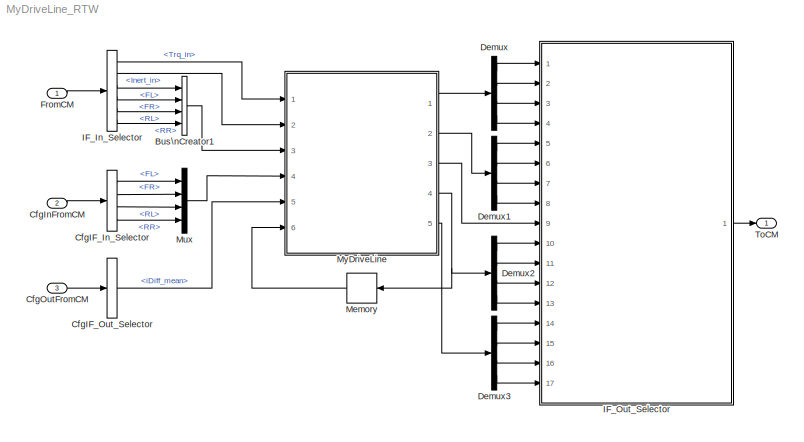
MODEL MyDriveLine_RTW
KIND model
CONFIG InitFcn = vehicle = 'Car'; if ~length(which('cmcmd')), cmenv; end\nMyDriveLine_RTW_bus
CONFIG PreLoadFcn = vehicle = 'Car'; if ~length(which('cmcmd')), cmenv; end\nMyDriveLine_RTW_bus
BLOCK [BusCreator] Bus\nCreator1
  DisplayOption = bar
  InheritFromInputs = on
  Inputs = 4
  Ports = [4, 1]
  SID = 85
BLOCK [BusSelector] CfgIF_In_Selector
  OutputSignals = Wheel_Iyy.FL,Wheel_Iyy.FR,Wheel_Iyy.RL,Wheel_Iyy.RR
  Ports = [1, 4]
  SID = 9
BLOCK [BusSelector] CfgIF_Out_Selector
  OutputSignals = iDiff_mean
  Ports = [1, 1]
  SID = 12
BLOCK [Inport] CfgInFromCM
  OutDataTypeStr = Bus: cmPTDriveLineCfgIn
  Port = 2
  SID = 8
BLOCK [Inport] CfgOutFromCM
  OutDataTypeStr = Bus: cmPTDriveLineCfgOut
  Port = 3
  SID = 11
BLOCK [Demux] Demux
  Ports = [1, 4]
  SID = 86
BLOCK [Demux] Demux1
  Ports = [1, 4]
  SID = 87
BLOCK [Demux] Demux2
  Ports = [1, 4]
  SID = 88
BLOCK [Demux] Demux3
  Ports = [1, 4]
  SID = 89
BLOCK [Inport] FromCM
  OutDataTypeStr = Bus: cmPTDriveLineIn
  SID = 1
BLOCK [BusSelector] IF_In_Selector
  OutputSignals = DriveIn.d0.Trq_in,DriveIn.d0.Inert_in,WheelIn.FL,WheelIn.FR,WheelIn.RL,WheelIn.RR
  Ports = [1, 6]
  SID = 2
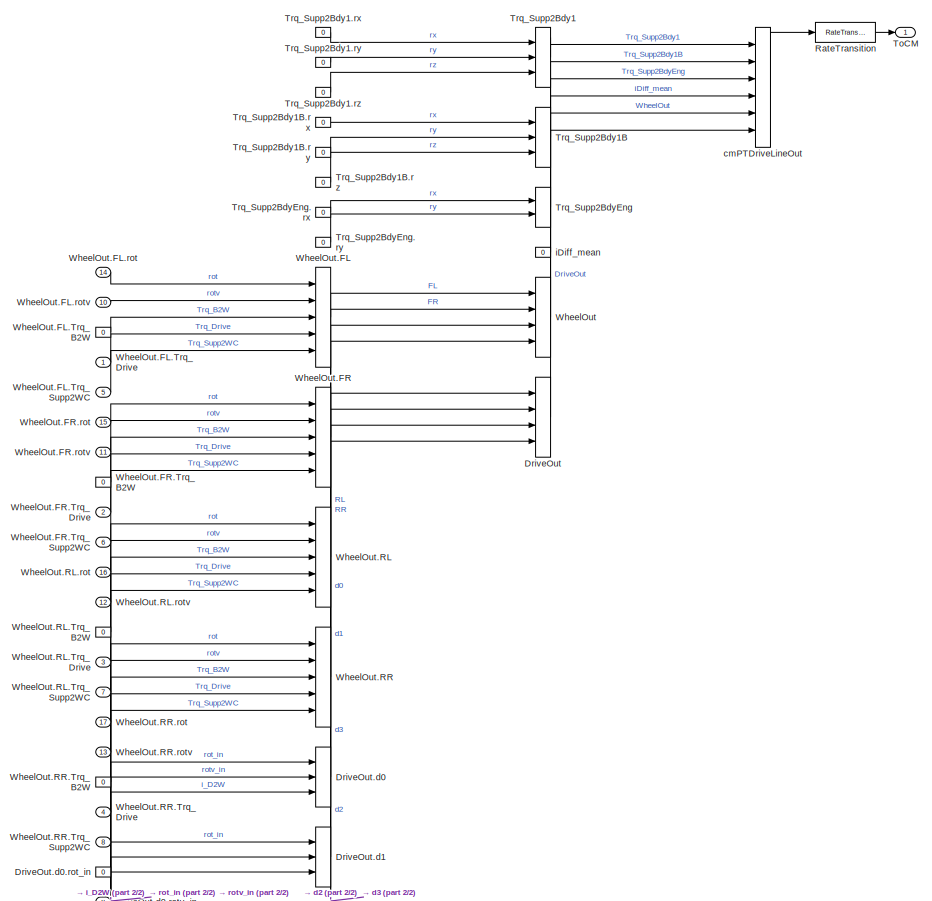
[diagram: IF_Out_Selector - part 1/2, full width, top band]
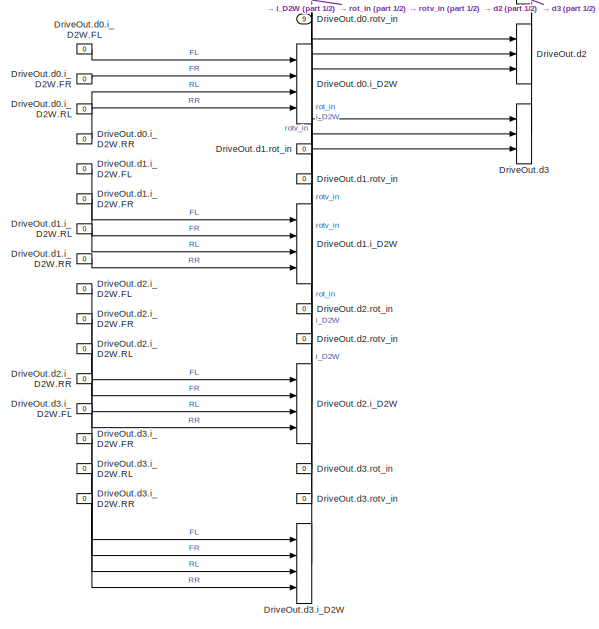
[diagram: IF_Out_Selector - part 2/2, bottom left region]
BLOCK [SubSystem] IF_Out_Selector
  OpenFcn = cmSignalSelect('SignalSelection_CB',gcb)
  Ports = [17, 1]
  RequestExecContextInheritance = off
  SID = 5
  UserData = DataTag0
  UserDataPersistent = on
BLOCK [BusCreator] IF_Out_Selector/DriveOut
  InheritFromInputs = on
  Inputs = 4
  Ports = [4, 1]
  SID = 52
BLOCK [BusCreator] IF_Out_Selector/DriveOut.d0
  InheritFromInputs = on
  Inputs = 3
  Ports = [3, 1]
  SID = 53
BLOCK [BusCreator] IF_Out_Selector/DriveOut.d0.i_D2W
  InheritFromInputs = on
  Inputs = 4
  Ports = [4, 1]
  SID = 56
BLOCK [Constant] IF_Out_Selector/DriveOut.d0.i_D2W.FL
  SID = 57
  Value = 0
BLOCK [Constant] IF_Out_Selector/DriveOut.d0.i_D2W.FR
  SID = 58
  Value = 0
BLOCK [Constant] IF_Out_Selector/DriveOut.d0.i_D2W.RL
  SID = 59
  Value = 0
BLOCK [Constant] IF_Out_Selector/DriveOut.d0.i_D2W.RR
  SID = 60
  Value = 0
BLOCK [Constant] IF_Out_Selector/DriveOut.d0.rot_in
  SID = 54
  Value = 0
BLOCK [Inport] IF_Out_Selector/DriveOut.d0.rotv_in
  Port = 9
  SID = 172
BLOCK [BusCreator] IF_Out_Selector/DriveOut.d1
  InheritFromInputs = on
  Inputs = 3
  Ports = [3, 1]
  SID = 61
BLOCK [BusCreator] IF_Out_Selector/DriveOut.d1.i_D2W
  InheritFromInputs = on
  Inputs = 4
  Ports = [4, 1]
  SID = 64
BLOCK [Constant] IF_Out_Selector/DriveOut.d1.i_D2W.FL
  SID = 65
  Value = 0
BLOCK [Constant] IF_Out_Selector/DriveOut.d1.i_D2W.FR
  SID = 66
  Value = 0
BLOCK [Constant] IF_Out_Selector/DriveOut.d1.i_D2W.RL
  SID = 67
  Value = 0
BLOCK [Constant] IF_Out_Selector/DriveOut.d1.i_D2W.RR
  SID = 68
  Value = 0
BLOCK [Constant] IF_Out_Selector/DriveOut.d1.rot_in
  SID = 62
  Value = 0
BLOCK [Constant] IF_Out_Selector/DriveOut.d1.rotv_in
  SID = 63
  Value = 0
BLOCK [BusCreator] IF_Out_Selector/DriveOut.d2
  InheritFromInputs = on
  Inputs = 3
  Ports = [3, 1]
  SID = 69
BLOCK [BusCreator] IF_Out_Selector/DriveOut.d2.i_D2W
  InheritFromInputs = on
  Inputs = 4
  Ports = [4, 1]
  SID = 72
BLOCK [Constant] IF_Out_Selector/DriveOut.d2.i_D2W.FL
  SID = 73
  Value = 0
BLOCK [Constant] IF_Out_Selector/DriveOut.d2.i_D2W.FR
  SID = 74
  Value = 0
BLOCK [Constant] IF_Out_Selector/DriveOut.d2.i_D2W.RL
  SID = 75
  Value = 0
BLOCK [Constant] IF_Out_Selector/DriveOut.d2.i_D2W.RR
  SID = 76
  Value = 0
BLOCK [Constant] IF_Out_Selector/DriveOut.d2.rot_in
  SID = 70
  Value = 0
BLOCK [Constant] IF_Out_Selector/DriveOut.d2.rotv_in
  SID = 71
  Value = 0
BLOCK [BusCreator] IF_Out_Selector/DriveOut.d3
  InheritFromInputs = on
  Inputs = 3
  Ports = [3, 1]
  SID = 77
BLOCK [BusCreator] IF_Out_Selector/DriveOut.d3.i_D2W
  InheritFromInputs = on
  Inputs = 4
  Ports = [4, 1]
  SID = 80
BLOCK [Constant] IF_Out_Selector/DriveOut.d3.i_D2W.FL
  SID = 81
  Value = 0
BLOCK [Constant] IF_Out_Selector/DriveOut.d3.i_D2W.FR
  SID = 82
  Value = 0
BLOCK [Constant] IF_Out_Selector/DriveOut.d3.i_D2W.RL
  SID = 83
  Value = 0
BLOCK [Constant] IF_Out_Selector/DriveOut.d3.i_D2W.RR
  SID = 84
  Value = 0
BLOCK [Constant] IF_Out_Selector/DriveOut.d3.rot_in
  SID = 78
  Value = 0
BLOCK [Constant] IF_Out_Selector/DriveOut.d3.rotv_in
  SID = 79
  Value = 0
BLOCK [RateTransition] IF_Out_Selector/RateTransition
  OutPortSampleTime = str2num(get_param(bdroot,'FixedStep'))
  SID = 6
BLOCK [Outport] IF_Out_Selector/ToCM
  SID = 7
  VectorParamsAs1DForOutWhenUnconnected = off
BLOCK [BusCreator] IF_Out_Selector/Trq_Supp2Bdy1
  InheritFromInputs = on
  Inputs = 3
  Ports = [3, 1]
  SID = 15
BLOCK [Constant] IF_Out_Selector/Trq_Supp2Bdy1.rx
  SID = 16
  Value = 0
BLOCK [Constant] IF_Out_Selector/Trq_Supp2Bdy1.ry
  SID = 17
  Value = 0
BLOCK [Constant] IF_Out_Selector/Trq_Supp2Bdy1.rz
  SID = 18
  Value = 0
BLOCK [BusCreator] IF_Out_Selector/Trq_Supp2Bdy1B
  InheritFromInputs = on
  Inputs = 3
  Ports = [3, 1]
  SID = 19
BLOCK [Constant] IF_Out_Selector/Trq_Supp2Bdy1B.rx
  SID = 20
  Value = 0
BLOCK [Constant] IF_Out_Selector/Trq_Supp2Bdy1B.ry
  SID = 21
  Value = 0
BLOCK [Constant] IF_Out_Selector/Trq_Supp2Bdy1B.rz
  SID = 22
  Value = 0
BLOCK [BusCreator] IF_Out_Selector/Trq_Supp2BdyEng
  InheritFromInputs = on
  Inputs = 2
  Ports = [2, 1]
  SID = 23
BLOCK [Constant] IF_Out_Selector/Trq_Supp2BdyEng.rx
  SID = 24
  Value = 0
BLOCK [Constant] IF_Out_Selector/Trq_Supp2BdyEng.ry
  SID = 25
  Value = 0
BLOCK [BusCreator] IF_Out_Selector/WheelOut
  InheritFromInputs = on
  Inputs = 4
  Ports = [4, 1]
  SID = 27
BLOCK [BusCreator] IF_Out_Selector/WheelOut.FL
  InheritFromInputs = on
  Inputs = 5
  Ports = [5, 1]
  SID = 28
BLOCK [Constant] IF_Out_Selector/WheelOut.FL.Trq_B2W
  SID = 31
  Value = 0
BLOCK [Inport] IF_Out_Selector/WheelOut.FL.Trq_Drive
  SID = 164
BLOCK [Inport] IF_Out_Selector/WheelOut.FL.Trq_Supp2WC
  Port = 5
  SID = 168
BLOCK [Inport] IF_Out_Selector/WheelOut.FL.rot
  Port = 14
  SID = 177
BLOCK [Inport] IF_Out_Selector/WheelOut.FL.rotv
  Port = 10
  SID = 173
BLOCK [BusCreator] IF_Out_Selector/WheelOut.FR
  InheritFromInputs = on
  Inputs = 5
  Ports = [5, 1]
  SID = 34
BLOCK [Constant] IF_Out_Selector/WheelOut.FR.Trq_B2W
  SID = 37
  Value = 0
BLOCK [Inport] IF_Out_Selector/WheelOut.FR.Trq_Drive
  Port = 2
  SID = 165
BLOCK [Inport] IF_Out_Selector/WheelOut.FR.Trq_Supp2WC
  Port = 6
  SID = 169
BLOCK [Inport] IF_Out_Selector/WheelOut.FR.rot
  Port = 15
  SID = 178
BLOCK [Inport] IF_Out_Selector/WheelOut.FR.rotv
  Port = 11
  SID = 174
BLOCK [BusCreator] IF_Out_Selector/WheelOut.RL
  InheritFromInputs = on
  Inputs = 5
  Ports = [5, 1]
  SID = 40
BLOCK [Constant] IF_Out_Selector/WheelOut.RL.Trq_B2W
  SID = 43
  Value = 0
BLOCK [Inport] IF_Out_Selector/WheelOut.RL.Trq_Drive
  Port = 3
  SID = 166
BLOCK [Inport] IF_Out_Selector/WheelOut.RL.Trq_Supp2WC
  Port = 7
  SID = 170
BLOCK [Inport] IF_Out_Selector/WheelOut.RL.rot
  Port = 16
  SID = 179
BLOCK [Inport] IF_Out_Selector/WheelOut.RL.rotv
  Port = 12
  SID = 175
BLOCK [BusCreator] IF_Out_Selector/WheelOut.RR
  InheritFromInputs = on
  Inputs = 5
  Ports = [5, 1]
  SID = 46
BLOCK [Constant] IF_Out_Selector/WheelOut.RR.Trq_B2W
  SID = 49
  Value = 0
BLOCK [Inport] IF_Out_Selector/WheelOut.RR.Trq_Drive
  Port = 4
  SID = 167
BLOCK [Inport] IF_Out_Selector/WheelOut.RR.Trq_Supp2WC
  Port = 8
  SID = 171
BLOCK [Inport] IF_Out_Selector/WheelOut.RR.rot
  Port = 17
  SID = 180
BLOCK [Inport] IF_Out_Selector/WheelOut.RR.rotv
  Port = 13
  SID = 176
BLOCK [BusCreator] IF_Out_Selector/cmPTDriveLineOut
  InheritFromInputs = on
  Inputs = 6
  Ports = [6, 1]
  SID = 14
BLOCK [Constant] IF_Out_Selector/iDiff_mean
  SID = 26
  Value = 0
BLOCK [Memory] Memory
  SID = 90
BLOCK [Mux] Mux
  DisplayOption = bar
  Ports = [4, 1]
  SID = 91
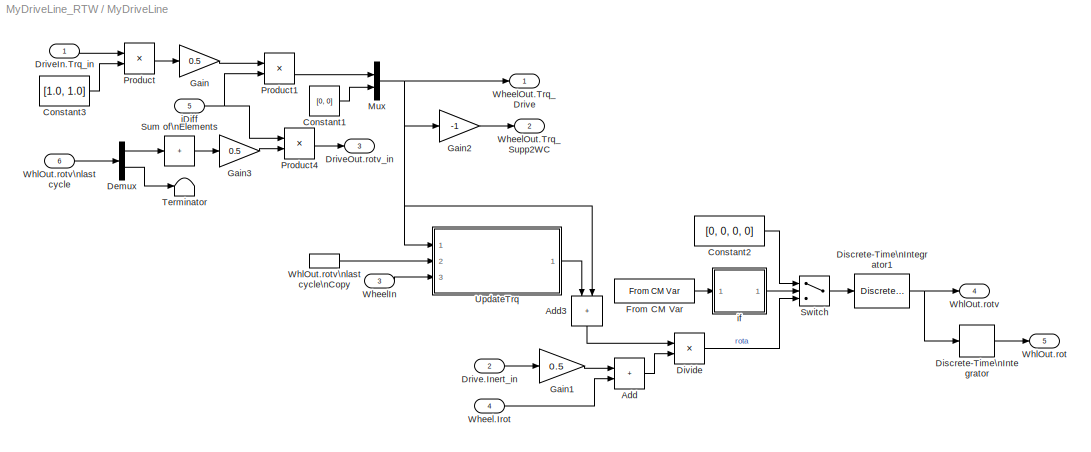
BLOCK [SubSystem] MyDriveLine
  Ports = [6, 5]
  RequestExecContextInheritance = off
  SID = 92
BLOCK [Sum] MyDriveLine/Add
  IconShape = rectangular
  Ports = [2, 1]
  SID = 99
BLOCK [Sum] MyDriveLine/Add3
  IconShape = rectangular
  NameLocation = left
  Ports = [2, 1]
  SID = 100
BLOCK [Constant] MyDriveLine/Constant1
  SID = 101
  Value = [0, 0]
BLOCK [Constant] MyDriveLine/Constant2
  SID = 102
  Value = [0, 0, 0, 0]
BLOCK [Constant] MyDriveLine/Constant3
  SID = 103
  Value = [1.0, 1.0]
BLOCK [Demux] MyDriveLine/Demux
  Outputs = 2
  Ports = [1, 2]
  SID = 104
BLOCK [DiscreteIntegrator] MyDriveLine/Discrete-Time\nIntegrator
  ICPrevOutput = DiscIntNeverNeededParam
  ICPrevScaledInput = DiscIntNeverNeededParam
  IntegratorMethod = Integration: Backward Euler
  Ports = [1, 1]
  SID = 105
  SampleTime = 0.0002
BLOCK [DiscreteIntegrator] MyDriveLine/Discrete-Time\nIntegrator1
  ICPrevOutput = DiscIntNeverNeededParam
  ICPrevScaledInput = DiscIntNeverNeededParam
  IntegratorMethod = Integration: Backward Euler
  Ports = [1, 1]
  SID = 106
  SampleTime = 0.0002
BLOCK [Product] MyDriveLine/Divide
  Inputs = */
  Ports = [2, 1]
  SID = 107
BLOCK [Inport] MyDriveLine/Drive.Inert_in
  Port = 2
  SID = 94
BLOCK [Inport] MyDriveLine/DriveIn.Trq_in
  SID = 93
BLOCK [Outport] MyDriveLine/DriveOut.rotv_in
  Port = 3
  SID = 161
  VectorParamsAs1DForOutWhenUnconnected = off
BLOCK [Reference] MyDriveLine/From CM Var  REF=CarMaker4SL/From CM Var
  Ports = [0, 1]
  SID = 108
  SourceBlock = CarMaker4SL/From CM Var
  SourceProductName = CarMaker4SL
  SourceType = From CarMaker Var
  xname = SimCore.State
BLOCK [Gain] MyDriveLine/Gain
  Gain = 0.5
  SID = 109
BLOCK [Gain] MyDriveLine/Gain1
  Gain = 0.5
  SID = 110
BLOCK [Gain] MyDriveLine/Gain2
  Gain = -1
  SID = 111
BLOCK [Gain] MyDriveLine/Gain3
  Gain = 0.5
  SID = 112
BLOCK [Mux] MyDriveLine/Mux
  DisplayOption = bar
  Inputs = 2
  Ports = [2, 1]
  SID = 113
BLOCK [Product] MyDriveLine/Product
  Ports = [2, 1]
  RndMeth = Zero
  SID = 114
BLOCK [Product] MyDriveLine/Product1
  Ports = [2, 1]
  RndMeth = Zero
  SID = 115
BLOCK [Product] MyDriveLine/Product4
  Ports = [2, 1]
  RndMeth = Zero
  SID = 116
BLOCK [Sum] MyDriveLine/Sum of\nElements
  IconShape = rectangular
  Inputs = +
  Ports = [1, 1]
  SID = 117
BLOCK [Switch] MyDriveLine/Switch
  Criteria = u2 ~= 0
  InputSameDT = off
  SID = 118
  SaturateOnIntegerOverflow = off
BLOCK [Terminator] MyDriveLine/Terminator
  SID = 119
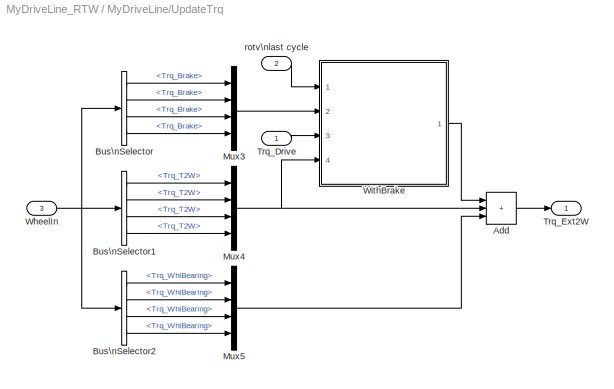
BLOCK [SubSystem] MyDriveLine/UpdateTrq
  Ports = [3, 1]
  RequestExecContextInheritance = off
  SID = 120
BLOCK [Sum] MyDriveLine/UpdateTrq/Add
  IconShape = rectangular
  Inputs = +++
  Ports = [3, 1]
  SID = 124
BLOCK [BusSelector] MyDriveLine/UpdateTrq/Bus\nSelector
  OutputSignals = FL.Trq_Brake,FR.Trq_Brake,RL.Trq_Brake,RR.Trq_Brake
  Ports = [1, 4]
  SID = 125
BLOCK [BusSelector] MyDriveLine/UpdateTrq/Bus\nSelector1
  OutputSignals = FL.Trq_T2W,FR.Trq_T2W,RL.Trq_T2W,RR.Trq_T2W
  Ports = [1, 4]
  SID = 126
BLOCK [BusSelector] MyDriveLine/UpdateTrq/Bus\nSelector2
  OutputSignals = FL.Trq_WhlBearing,FR.Trq_WhlBearing,RL.Trq_WhlBearing,RR.Trq_WhlBearing
  Ports = [1, 4]
  SID = 127
BLOCK [Mux] MyDriveLine/UpdateTrq/Mux3
  DisplayOption = bar
  Ports = [4, 1]
  SID = 128
BLOCK [Mux] MyDriveLine/UpdateTrq/Mux4
  DisplayOption = bar
  Ports = [4, 1]
  SID = 129
BLOCK [Mux] MyDriveLine/UpdateTrq/Mux5
  DisplayOption = bar
  Ports = [4, 1]
  SID = 130
BLOCK [Inport] MyDriveLine/UpdateTrq/Trq_Drive
  SID = 121
BLOCK [Outport] MyDriveLine/UpdateTrq/Trq_Ext2W
  SID = 151
  VectorParamsAs1DForOutWhenUnconnected = off
BLOCK [Inport] MyDriveLine/UpdateTrq/WheelIn
  Port = 3
  SID = 123
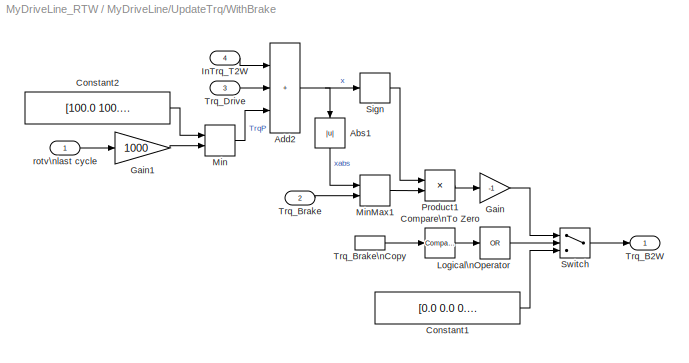
BLOCK [SubSystem] MyDriveLine/UpdateTrq/WithBrake
  Ports = [4, 1]
  RequestExecContextInheritance = off
  SID = 131
BLOCK [Abs] MyDriveLine/UpdateTrq/WithBrake/Abs1
  NameLocation = left
  SID = 136
  SaturateOnIntegerOverflow = off
BLOCK [Sum] MyDriveLine/UpdateTrq/WithBrake/Add2
  IconShape = rectangular
  Inputs = +++
  Ports = [3, 1]
  SID = 137
BLOCK [Reference] MyDriveLine/UpdateTrq/WithBrake/Compare\nTo Zero  REF=simulink/Logic and Bit\nOperations/Compare\nTo Zero
  FunctionWithSeparateData = off
  LogicOutDataTypeMode = uint8
  Ports = [1, 1]
  RTWMemSecDataConstants = Inherit from model
  RTWMemSecDataInternal = Inherit from model
  RTWMemSecDataParameters = Inherit from model
  RTWMemSecFuncExecute = Inherit from model
  RTWMemSecFuncInitTerm = Inherit from model
  SID = 138
  ShowPortLabels = FromPortIcon
  SourceBlock = simulink/Logic and Bit\nOperations/Compare\nTo Zero
  SourceProductBaseCode = SL
  SourceType = Compare To Zero
  SystemSampleTime = -1
  ZeroCross = off
  relop = >
BLOCK [Constant] MyDriveLine/UpdateTrq/WithBrake/Constant1
  SID = 139
  Value = [0.0 0.0 0.0 0.0]
BLOCK [Constant] MyDriveLine/UpdateTrq/WithBrake/Constant2
  SID = 140
  Value = [100.0 100.0 100.0 100.0]
BLOCK [Gain] MyDriveLine/UpdateTrq/WithBrake/Gain
  Gain = -1
  SID = 141
BLOCK [Gain] MyDriveLine/UpdateTrq/WithBrake/Gain1
  Gain = 1000
  SID = 142
BLOCK [Inport] MyDriveLine/UpdateTrq/WithBrake/InTrq_T2W
  Port = 4
  SID = 135
BLOCK [Logic] MyDriveLine/UpdateTrq/WithBrake/Logical\nOperator
  AllPortsSameDT = off
  Inputs = 1
  Operator = OR
  OutDataTypeStr = boolean
  Ports = [1, 1]
  SID = 143
BLOCK [MinMax] MyDriveLine/UpdateTrq/WithBrake/Min
  Inputs = 2
  Ports = [2, 1]
  SID = 144
BLOCK [MinMax] MyDriveLine/UpdateTrq/WithBrake/MinMax1
  Inputs = 2
  NameLocation = top
  Ports = [2, 1]
  SID = 145
BLOCK [Product] MyDriveLine/UpdateTrq/WithBrake/Product1
  NameLocation = top
  Ports = [2, 1]
  RndMeth = Zero
  SID = 146
BLOCK [Signum] MyDriveLine/UpdateTrq/WithBrake/Sign
  SID = 147
BLOCK [Switch] MyDriveLine/UpdateTrq/WithBrake/Switch
  Criteria = u2 ~= 0
  InputSameDT = off
  SID = 148
  SaturateOnIntegerOverflow = off
BLOCK [Outport] MyDriveLine/UpdateTrq/WithBrake/Trq_B2W
  SID = 150
  VectorParamsAs1DForOutWhenUnconnected = off
BLOCK [Inport] MyDriveLine/UpdateTrq/WithBrake/Trq_Brake
  Port = 2
  SID = 133
BLOCK [InportShadow] MyDriveLine/UpdateTrq/WithBrake/Trq_Brake\nCopy
  Port = 2
  SID = 149
BLOCK [Inport] MyDriveLine/UpdateTrq/WithBrake/Trq_Drive
  Port = 3
  SID = 134
BLOCK [Inport] MyDriveLine/UpdateTrq/WithBrake/rotv\nlast cycle
  SID = 132
BLOCK [Inport] MyDriveLine/UpdateTrq/rotv\nlast cycle
  Port = 2
  SID = 122
BLOCK [Inport] MyDriveLine/Wheel.Irot
  Port = 4
  SID = 96
BLOCK [Inport] MyDriveLine/WheelIn
  Port = 3
  SID = 95
BLOCK [Outport] MyDriveLine/WheelOut.Trq_Drive
  SID = 159
  VectorParamsAs1DForOutWhenUnconnected = off
BLOCK [Outport] MyDriveLine/WheelOut.Trq_Supp2WC
  Port = 2
  SID = 160
  VectorParamsAs1DForOutWhenUnconnected = off
BLOCK [Outport] MyDriveLine/WhlOut.rot
  Port = 5
  SID = 163
  VectorParamsAs1DForOutWhenUnconnected = off
BLOCK [Outport] MyDriveLine/WhlOut.rotv
  Port = 4
  SID = 162
  VectorParamsAs1DForOutWhenUnconnected = off
BLOCK [Inport] MyDriveLine/WhlOut.rotv\nlast cycle
  Port = 6
  SID = 98
BLOCK [InportShadow] MyDriveLine/WhlOut.rotv\nlast cycle\nCopy
  Port = 6
  SID = 152
BLOCK [Inport] MyDriveLine/iDiff
  Port = 5
  SID = 97
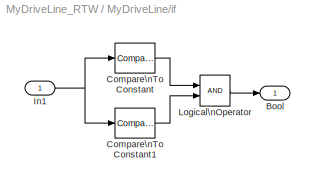
BLOCK [SubSystem] MyDriveLine/if
  Ports = [1, 1]
  RequestExecContextInheritance = off
  SID = 153
BLOCK [Outport] MyDriveLine/if/Bool
  SID = 158
  VectorParamsAs1DForOutWhenUnconnected = off
BLOCK [Reference] MyDriveLine/if/Compare\nTo Constant  REF=simulink/Logic and Bit\nOperations/Compare\nTo Constant
  FunctionWithSeparateData = off
  LogicOutDataTypeMode = uint8
  Ports = [1, 1]
  RTWMemSecDataConstants = Inherit from model
  RTWMemSecDataInternal = Inherit from model
  RTWMemSecDataParameters = Inherit from model
  RTWMemSecFuncExecute = Inherit from model
  RTWMemSecFuncInitTerm = Inherit from model
  SID = 155
  ShowPortLabels = FromPortIcon
  SourceBlock = simulink/Logic and Bit\nOperations/Compare\nTo Constant
  SourceProductBaseCode = SL
  SourceType = Compare To Constant
  SystemSampleTime = -1
  ZeroCross = off
  const = 8
  relop = ~=
BLOCK [Reference] MyDriveLine/if/Compare\nTo Constant1  REF=simulink/Logic and Bit\nOperations/Compare\nTo Constant
  FunctionWithSeparateData = off
  LogicOutDataTypeMode = uint8
  Ports = [1, 1]
  RTWMemSecDataConstants = Inherit from model
  RTWMemSecDataInternal = Inherit from model
  RTWMemSecDataParameters = Inherit from model
  RTWMemSecFuncExecute = Inherit from model
  RTWMemSecFuncInitTerm = Inherit from model
  SID = 156
  ShowPortLabels = FromPortIcon
  SourceBlock = simulink/Logic and Bit\nOperations/Compare\nTo Constant
  SourceProductBaseCode = SL
  SourceType = Compare To Constant
  SystemSampleTime = -1
  ZeroCross = off
  const = 10
  relop = ~=
BLOCK [Inport] MyDriveLine/if/In1
  SID = 154
BLOCK [Logic] MyDriveLine/if/Logical\nOperator
  AllPortsSameDT = off
  OutDataTypeStr = boolean
  Ports = [2, 1]
  SID = 157
BLOCK [Outport] ToCM
  OutDataTypeStr = Bus: cmPTDriveLineOut
  SID = 4
  VectorParamsAs1DForOutWhenUnconnected = off
LINE Bus\nCreator1:1 -> MyDriveLine:3
LINE CfgIF_In_Selector:1 -> Mux:1
LINE CfgIF_In_Selector:2 -> Mux:2
LINE CfgIF_In_Selector:3 -> Mux:3
LINE CfgIF_In_Selector:4 -> Mux:4
LINE CfgIF_Out_Selector:1 -> MyDriveLine:5
LINE CfgInFromCM:1 -> CfgIF_In_Selector:1
LINE CfgOutFromCM:1 -> CfgIF_Out_Selector:1
LINE Demux1:1 -> IF_Out_Selector:5
LINE Demux1:2 -> IF_Out_Selector:6
LINE Demux1:3 -> IF_Out_Selector:7
LINE Demux1:4 -> IF_Out_Selector:8
LINE Demux2:1 -> IF_Out_Selector:10
LINE Demux2:2 -> IF_Out_Selector:11
LINE Demux2:3 -> IF_Out_Selector:12
LINE Demux2:4 -> IF_Out_Selector:13
LINE Demux3:1 -> IF_Out_Selector:14
LINE Demux3:2 -> IF_Out_Selector:15
LINE Demux3:3 -> IF_Out_Selector:16
LINE Demux3:4 -> IF_Out_Selector:17
LINE Demux:1 -> IF_Out_Selector:1
LINE Demux:2 -> IF_Out_Selector:2
LINE Demux:3 -> IF_Out_Selector:3
LINE Demux:4 -> IF_Out_Selector:4
LINE FromCM:1 -> IF_In_Selector:1
LINE IF_In_Selector:1 -> MyDriveLine:1
LINE IF_In_Selector:2 -> MyDriveLine:2
LINE IF_In_Selector:3 -> Bus\nCreator1:1
LINE IF_In_Selector:4 -> Bus\nCreator1:2
LINE IF_In_Selector:5 -> Bus\nCreator1:3
LINE IF_In_Selector:6 -> Bus\nCreator1:4
LINE IF_Out_Selector/DriveOut.d0.i_D2W.FL:1 -> IF_Out_Selector/DriveOut.d0.i_D2W:1
LINE IF_Out_Selector/DriveOut.d0.i_D2W.FR:1 -> IF_Out_Selector/DriveOut.d0.i_D2W:2
LINE IF_Out_Selector/DriveOut.d0.i_D2W.RL:1 -> IF_Out_Selector/DriveOut.d0.i_D2W:3
LINE IF_Out_Selector/DriveOut.d0.i_D2W.RR:1 -> IF_Out_Selector/DriveOut.d0.i_D2W:4
LINE IF_Out_Selector/DriveOut.d0.i_D2W:1 -> IF_Out_Selector/DriveOut.d0:3
LINE IF_Out_Selector/DriveOut.d0.rot_in:1 -> IF_Out_Selector/DriveOut.d0:1
LINE IF_Out_Selector/DriveOut.d0.rotv_in:1 -> IF_Out_Selector/DriveOut.d0:2
LINE IF_Out_Selector/DriveOut.d0:1 -> IF_Out_Selector/DriveOut:1
LINE IF_Out_Selector/DriveOut.d1.i_D2W.FL:1 -> IF_Out_Selector/DriveOut.d1.i_D2W:1
LINE IF_Out_Selector/DriveOut.d1.i_D2W.FR:1 -> IF_Out_Selector/DriveOut.d1.i_D2W:2
LINE IF_Out_Selector/DriveOut.d1.i_D2W.RL:1 -> IF_Out_Selector/DriveOut.d1.i_D2W:3
LINE IF_Out_Selector/DriveOut.d1.i_D2W.RR:1 -> IF_Out_Selector/DriveOut.d1.i_D2W:4
LINE IF_Out_Selector/DriveOut.d1.i_D2W:1 -> IF_Out_Selector/DriveOut.d1:3
LINE IF_Out_Selector/DriveOut.d1.rot_in:1 -> IF_Out_Selector/DriveOut.d1:1
LINE IF_Out_Selector/DriveOut.d1.rotv_in:1 -> IF_Out_Selector/DriveOut.d1:2
LINE IF_Out_Selector/DriveOut.d1:1 -> IF_Out_Selector/DriveOut:2
LINE IF_Out_Selector/DriveOut.d2.i_D2W.FL:1 -> IF_Out_Selector/DriveOut.d2.i_D2W:1
LINE IF_Out_Selector/DriveOut.d2.i_D2W.FR:1 -> IF_Out_Selector/DriveOut.d2.i_D2W:2
LINE IF_Out_Selector/DriveOut.d2.i_D2W.RL:1 -> IF_Out_Selector/DriveOut.d2.i_D2W:3
LINE IF_Out_Selector/DriveOut.d2.i_D2W.RR:1 -> IF_Out_Selector/DriveOut.d2.i_D2W:4
LINE IF_Out_Selector/DriveOut.d2.i_D2W:1 -> IF_Out_Selector/DriveOut.d2:3
LINE IF_Out_Selector/DriveOut.d2.rot_in:1 -> IF_Out_Selector/DriveOut.d2:1
LINE IF_Out_Selector/DriveOut.d2.rotv_in:1 -> IF_Out_Selector/DriveOut.d2:2
LINE IF_Out_Selector/DriveOut.d2:1 -> IF_Out_Selector/DriveOut:3
LINE IF_Out_Selector/DriveOut.d3.i_D2W.FL:1 -> IF_Out_Selector/DriveOut.d3.i_D2W:1
LINE IF_Out_Selector/DriveOut.d3.i_D2W.FR:1 -> IF_Out_Selector/DriveOut.d3.i_D2W:2
LINE IF_Out_Selector/DriveOut.d3.i_D2W.RL:1 -> IF_Out_Selector/DriveOut.d3.i_D2W:3
LINE IF_Out_Selector/DriveOut.d3.i_D2W.RR:1 -> IF_Out_Selector/DriveOut.d3.i_D2W:4
LINE IF_Out_Selector/DriveOut.d3.i_D2W:1 -> IF_Out_Selector/DriveOut.d3:3
LINE IF_Out_Selector/DriveOut.d3.rot_in:1 -> IF_Out_Selector/DriveOut.d3:1
LINE IF_Out_Selector/DriveOut.d3.rotv_in:1 -> IF_Out_Selector/DriveOut.d3:2
LINE IF_Out_Selector/DriveOut.d3:1 -> IF_Out_Selector/DriveOut:4
LINE IF_Out_Selector/DriveOut:1 -> IF_Out_Selector/cmPTDriveLineOut:6
LINE IF_Out_Selector/RateTransition:1 -> IF_Out_Selector/ToCM:1
LINE IF_Out_Selector/Trq_Supp2Bdy1.rx:1 -> IF_Out_Selector/Trq_Supp2Bdy1:1
LINE IF_Out_Selector/Trq_Supp2Bdy1.ry:1 -> IF_Out_Selector/Trq_Supp2Bdy1:2
LINE IF_Out_Selector/Trq_Supp2Bdy1.rz:1 -> IF_Out_Selector/Trq_Supp2Bdy1:3
LINE IF_Out_Selector/Trq_Supp2Bdy1:1 -> IF_Out_Selector/cmPTDriveLineOut:1
LINE IF_Out_Selector/Trq_Supp2Bdy1B.rx:1 -> IF_Out_Selector/Trq_Supp2Bdy1B:1
LINE IF_Out_Selector/Trq_Supp2Bdy1B.ry:1 -> IF_Out_Selector/Trq_Supp2Bdy1B:2
LINE IF_Out_Selector/Trq_Supp2Bdy1B.rz:1 -> IF_Out_Selector/Trq_Supp2Bdy1B:3
LINE IF_Out_Selector/Trq_Supp2Bdy1B:1 -> IF_Out_Selector/cmPTDriveLineOut:2
LINE IF_Out_Selector/Trq_Supp2BdyEng.rx:1 -> IF_Out_Selector/Trq_Supp2BdyEng:1
LINE IF_Out_Selector/Trq_Supp2BdyEng.ry:1 -> IF_Out_Selector/Trq_Supp2BdyEng:2
LINE IF_Out_Selector/Trq_Supp2BdyEng:1 -> IF_Out_Selector/cmPTDriveLineOut:3
LINE IF_Out_Selector/WheelOut.FL.Trq_B2W:1 -> IF_Out_Selector/WheelOut.FL:3
LINE IF_Out_Selector/WheelOut.FL.Trq_Drive:1 -> IF_Out_Selector/WheelOut.FL:4
LINE IF_Out_Selector/WheelOut.FL.Trq_Supp2WC:1 -> IF_Out_Selector/WheelOut.FL:5
LINE IF_Out_Selector/WheelOut.FL.rot:1 -> IF_Out_Selector/WheelOut.FL:1
LINE IF_Out_Selector/WheelOut.FL.rotv:1 -> IF_Out_Selector/WheelOut.FL:2
LINE IF_Out_Selector/WheelOut.FL:1 -> IF_Out_Selector/WheelOut:1
LINE IF_Out_Selector/WheelOut.FR.Trq_B2W:1 -> IF_Out_Selector/WheelOut.FR:3
LINE IF_Out_Selector/WheelOut.FR.Trq_Drive:1 -> IF_Out_Selector/WheelOut.FR:4
LINE IF_Out_Selector/WheelOut.FR.Trq_Supp2WC:1 -> IF_Out_Selector/WheelOut.FR:5
LINE IF_Out_Selector/WheelOut.FR.rot:1 -> IF_Out_Selector/WheelOut.FR:1
LINE IF_Out_Selector/WheelOut.FR.rotv:1 -> IF_Out_Selector/WheelOut.FR:2
LINE IF_Out_Selector/WheelOut.FR:1 -> IF_Out_Selector/WheelOut:2
LINE IF_Out_Selector/WheelOut.RL.Trq_B2W:1 -> IF_Out_Selector/WheelOut.RL:3
LINE IF_Out_Selector/WheelOut.RL.Trq_Drive:1 -> IF_Out_Selector/WheelOut.RL:4
LINE IF_Out_Selector/WheelOut.RL.Trq_Supp2WC:1 -> IF_Out_Selector/WheelOut.RL:5
LINE IF_Out_Selector/WheelOut.RL.rot:1 -> IF_Out_Selector/WheelOut.RL:1
LINE IF_Out_Selector/WheelOut.RL.rotv:1 -> IF_Out_Selector/WheelOut.RL:2
LINE IF_Out_Selector/WheelOut.RL:1 -> IF_Out_Selector/WheelOut:3
LINE IF_Out_Selector/WheelOut.RR.Trq_B2W:1 -> IF_Out_Selector/WheelOut.RR:3
LINE IF_Out_Selector/WheelOut.RR.Trq_Drive:1 -> IF_Out_Selector/WheelOut.RR:4
LINE IF_Out_Selector/WheelOut.RR.Trq_Supp2WC:1 -> IF_Out_Selector/WheelOut.RR:5
LINE IF_Out_Selector/WheelOut.RR.rot:1 -> IF_Out_Selector/WheelOut.RR:1
LINE IF_Out_Selector/WheelOut.RR.rotv:1 -> IF_Out_Selector/WheelOut.RR:2
LINE IF_Out_Selector/WheelOut.RR:1 -> IF_Out_Selector/WheelOut:4
LINE IF_Out_Selector/WheelOut:1 -> IF_Out_Selector/cmPTDriveLineOut:5
LINE IF_Out_Selector/cmPTDriveLineOut:1 -> IF_Out_Selector/RateTransition:1
LINE IF_Out_Selector/iDiff_mean:1 -> IF_Out_Selector/cmPTDriveLineOut:4
LINE IF_Out_Selector:1 -> ToCM:1
LINE Memory:1 -> MyDriveLine:6
LINE Mux:1 -> MyDriveLine:4
LINE MyDriveLine/Add3:1 -> MyDriveLine/Divide:1
LINE MyDriveLine/Add:1 -> MyDriveLine/Divide:2
LINE MyDriveLine/Constant1:1 -> MyDriveLine/Mux:2
LINE MyDriveLine/Constant2:1 -> MyDriveLine/Switch:1
LINE MyDriveLine/Constant3:1 -> MyDriveLine/Product:2
LINE MyDriveLine/Demux:1 -> MyDriveLine/Sum of\nElements:1
LINE MyDriveLine/Demux:2 -> MyDriveLine/Terminator:1
NET MyDriveLine/Discrete-Time\nIntegrator1:1 -> MyDriveLine/Discrete-Time\nIntegrator:1, MyDriveLine/WhlOut.rotv:1
LINE MyDriveLine/Discrete-Time\nIntegrator:1 -> MyDriveLine/WhlOut.rot:1
LINE MyDriveLine/Divide:1 -> MyDriveLine/Switch:3
LINE MyDriveLine/Drive.Inert_in:1 -> MyDriveLine/Gain1:1
LINE MyDriveLine/DriveIn.Trq_in:1 -> MyDriveLine/Product:1
LINE MyDriveLine/From CM Var:1 -> MyDriveLine/if:1
LINE MyDriveLine/Gain1:1 -> MyDriveLine/Add:1
LINE MyDriveLine/Gain2:1 -> MyDriveLine/WheelOut.Trq_Supp2WC:1
LINE MyDriveLine/Gain3:1 -> MyDriveLine/Product4:2
LINE MyDriveLine/Gain:1 -> MyDriveLine/Product1:1
NET MyDriveLine/Mux:1 -> MyDriveLine/Add3:2, MyDriveLine/Gain2:1, MyDriveLine/UpdateTrq:1, MyDriveLine/WheelOut.Trq_Drive:1
LINE MyDriveLine/Product1:1 -> MyDriveLine/Mux:1
LINE MyDriveLine/Product4:1 -> MyDriveLine/DriveOut.rotv_in:1
LINE MyDriveLine/Product:1 -> MyDriveLine/Gain:1
LINE MyDriveLine/Sum of\nElements:1 -> MyDriveLine/Gain3:1
LINE MyDriveLine/Switch:1 -> MyDriveLine/Discrete-Time\nIntegrator1:1
LINE MyDriveLine/UpdateTrq/Add:1 -> MyDriveLine/UpdateTrq/Trq_Ext2W:1
LINE MyDriveLine/UpdateTrq/Bus\nSelector1:1 -> MyDriveLine/UpdateTrq/Mux4:1
LINE MyDriveLine/UpdateTrq/Bus\nSelector1:2 -> MyDriveLine/UpdateTrq/Mux4:2
LINE MyDriveLine/UpdateTrq/Bus\nSelector1:3 -> MyDriveLine/UpdateTrq/Mux4:3
LINE MyDriveLine/UpdateTrq/Bus\nSelector1:4 -> MyDriveLine/UpdateTrq/Mux4:4
LINE MyDriveLine/UpdateTrq/Bus\nSelector2:1 -> MyDriveLine/UpdateTrq/Mux5:1
LINE MyDriveLine/UpdateTrq/Bus\nSelector2:2 -> MyDriveLine/UpdateTrq/Mux5:2
LINE MyDriveLine/UpdateTrq/Bus\nSelector2:3 -> MyDriveLine/UpdateTrq/Mux5:3
LINE MyDriveLine/UpdateTrq/Bus\nSelector2:4 -> MyDriveLine/UpdateTrq/Mux5:4
LINE MyDriveLine/UpdateTrq/Bus\nSelector:1 -> MyDriveLine/UpdateTrq/Mux3:1
LINE MyDriveLine/UpdateTrq/Bus\nSelector:2 -> MyDriveLine/UpdateTrq/Mux3:2
LINE MyDriveLine/UpdateTrq/Bus\nSelector:3 -> MyDriveLine/UpdateTrq/Mux3:3
LINE MyDriveLine/UpdateTrq/Bus\nSelector:4 -> MyDriveLine/UpdateTrq/Mux3:4
LINE MyDriveLine/UpdateTrq/Mux3:1 -> MyDriveLine/UpdateTrq/WithBrake:2
NET MyDriveLine/UpdateTrq/Mux4:1 -> MyDriveLine/UpdateTrq/Add:2, MyDriveLine/UpdateTrq/WithBrake:4
LINE MyDriveLine/UpdateTrq/Mux5:1 -> MyDriveLine/UpdateTrq/Add:3
LINE MyDriveLine/UpdateTrq/Trq_Drive:1 -> MyDriveLine/UpdateTrq/WithBrake:3
NET MyDriveLine/UpdateTrq/WheelIn:1 -> MyDriveLine/UpdateTrq/Bus\nSelector1:1, MyDriveLine/UpdateTrq/Bus\nSelector2:1, MyDriveLine/UpdateTrq/Bus\nSelector:1
LINE MyDriveLine/UpdateTrq/WithBrake/Abs1:1 -> MyDriveLine/UpdateTrq/WithBrake/MinMax1:1
NET MyDriveLine/UpdateTrq/WithBrake/Add2:1 -> MyDriveLine/UpdateTrq/WithBrake/Abs1:1, MyDriveLine/UpdateTrq/WithBrake/Sign:1
LINE MyDriveLine/UpdateTrq/WithBrake/Compare\nTo Zero:1 -> MyDriveLine/UpdateTrq/WithBrake/Logical\nOperator:1
LINE MyDriveLine/UpdateTrq/WithBrake/Constant1:1 -> MyDriveLine/UpdateTrq/WithBrake/Switch:3
LINE MyDriveLine/UpdateTrq/WithBrake/Constant2:1 -> MyDriveLine/UpdateTrq/WithBrake/Min:1
LINE MyDriveLine/UpdateTrq/WithBrake/Gain1:1 -> MyDriveLine/UpdateTrq/WithBrake/Min:2
LINE MyDriveLine/UpdateTrq/WithBrake/Gain:1 -> MyDriveLine/UpdateTrq/WithBrake/Switch:1
LINE MyDriveLine/UpdateTrq/WithBrake/InTrq_T2W:1 -> MyDriveLine/UpdateTrq/WithBrake/Add2:1
LINE MyDriveLine/UpdateTrq/WithBrake/Logical\nOperator:1 -> MyDriveLine/UpdateTrq/WithBrake/Switch:2
LINE MyDriveLine/UpdateTrq/WithBrake/Min:1 -> MyDriveLine/UpdateTrq/WithBrake/Add2:3
LINE MyDriveLine/UpdateTrq/WithBrake/MinMax1:1 -> MyDriveLine/UpdateTrq/WithBrake/Product1:2
LINE MyDriveLine/UpdateTrq/WithBrake/Product1:1 -> MyDriveLine/UpdateTrq/WithBrake/Gain:1
LINE MyDriveLine/UpdateTrq/WithBrake/Sign:1 -> MyDriveLine/UpdateTrq/WithBrake/Product1:1
LINE MyDriveLine/UpdateTrq/WithBrake/Switch:1 -> MyDriveLine/UpdateTrq/WithBrake/Trq_B2W:1
LINE MyDriveLine/UpdateTrq/WithBrake/Trq_Brake:1 -> MyDriveLine/UpdateTrq/WithBrake/MinMax1:2
LINE MyDriveLine/UpdateTrq/WithBrake/Trq_Brake\nCopy:1 -> MyDriveLine/UpdateTrq/WithBrake/Compare\nTo Zero:1
LINE MyDriveLine/UpdateTrq/WithBrake/Trq_Drive:1 -> MyDriveLine/UpdateTrq/WithBrake/Add2:2
LINE MyDriveLine/UpdateTrq/WithBrake/rotv\nlast cycle:1 -> MyDriveLine/UpdateTrq/WithBrake/Gain1:1
LINE MyDriveLine/UpdateTrq/WithBrake:1 -> MyDriveLine/UpdateTrq/Add:1
LINE MyDriveLine/UpdateTrq/rotv\nlast cycle:1 -> MyDriveLine/UpdateTrq/WithBrake:1
LINE MyDriveLine/UpdateTrq:1 -> MyDriveLine/Add3:1
LINE MyDriveLine/Wheel.Irot:1 -> MyDriveLine/Add:2
LINE MyDriveLine/WheelIn:1 -> MyDriveLine/UpdateTrq:3
LINE MyDriveLine/WhlOut.rotv\nlast cycle:1 -> MyDriveLine/Demux:1
LINE MyDriveLine/WhlOut.rotv\nlast cycle\nCopy:1 -> MyDriveLine/UpdateTrq:2
NET MyDriveLine/iDiff:1 -> MyDriveLine/Product1:2, MyDriveLine/Product4:1
LINE MyDriveLine/if/Compare\nTo Constant1:1 -> MyDriveLine/if/Logical\nOperator:2
LINE MyDriveLine/if/Compare\nTo Constant:1 -> MyDriveLine/if/Logical\nOperator:1
NET MyDriveLine/if/In1:1 -> MyDriveLine/if/Compare\nTo Constant1:1, MyDriveLine/if/Compare\nTo Constant:1
LINE MyDriveLine/if/Logical\nOperator:1 -> MyDriveLine/if/Bool:1
LINE MyDriveLine/if:1 -> MyDriveLine/Switch:2
LINE MyDriveLine:1 -> Demux:1
LINE MyDriveLine:2 -> Demux1:1
LINE MyDriveLine:3 -> IF_Out_Selector:9
NET MyDriveLine:4 -> Demux2:1, Memory:1
LINE MyDriveLine:5 -> Demux3:1
note: NET lines group one-source signal fan-out (src -> all destinations, sorted); 1:1 wires keep LINE
